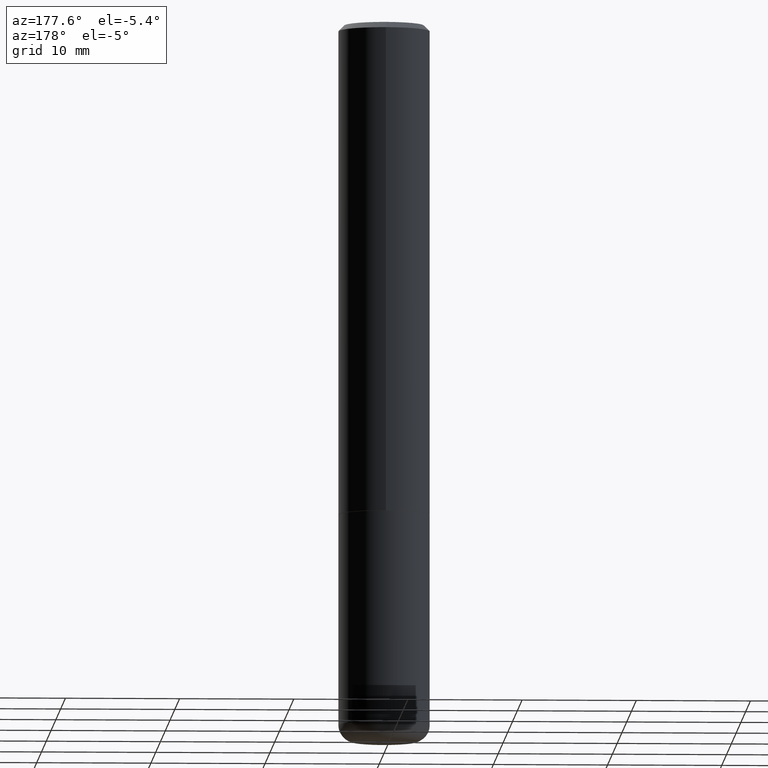
[diagram: clean part render]
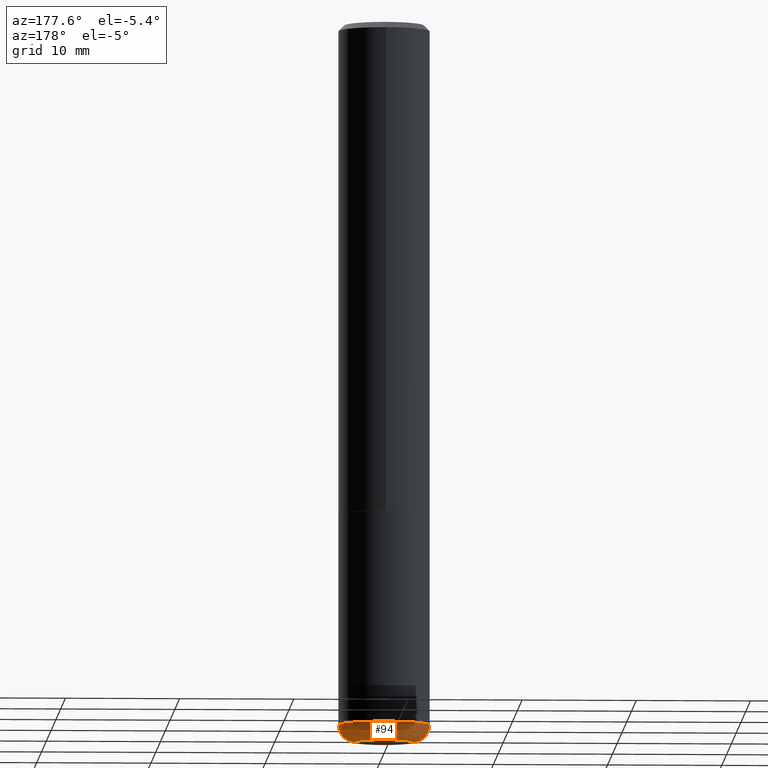
[diagram: same view with one face highlighted and labeled with its STEP entity id]
A machine part, auxiliary view. The second image highlights one B-rep face of the part: STEP entity #94.
In plain terms, the highlighted toroidal blend (fillet) surface has major radius 2.4994 mm and minor (blend) radius 1.5011 mm.
Its self-contained STEP definition (entity closure, byte-faithful):
#21 = DIRECTION ( 'NONE',  ( -2.445468806185136597E-29, 3.491481338843145583E-15, 1.000000000000000000 ) ) ;
#37 = CARTESIAN_POINT ( 'NONE',  ( 6.065496279980994755E-29, -8.659921164732655335E-15, -2.480300000000000171 ) ) ;
#39 = ORIENTED_EDGE ( 'NONE', *, *, #386, .T. ) ;
#43 = VERTEX_POINT ( 'NONE', #157 ) ;
#45 = CARTESIAN_POINT ( 'NONE',  ( -0.1574999999999999456, -7.334469808784867333E-15, -2.421200000000000241 ) ) ;
#48 = CARTESIAN_POINT ( 'NONE',  ( 0.09840000000000000135, -9.347044692216982806E-15, -2.480300000000000171 ) ) ;
#72 = AXIS2_PLACEMENT_3D ( 'NONE', #98, #344, #252 ) ;
#94 = ADVANCED_FACE ( 'NONE', ( #381 ), #202, .T. ) ;
#95 = DIRECTION ( 'NONE',  ( 7.105427357601001859E-15, 1.000000000000000000, -3.491481338843145583E-15 ) ) ;
#96 = AXIS2_PLACEMENT_3D ( 'NONE', #126, #21, #284 ) ;
#98 = CARTESIAN_POINT ( 'NONE',  ( 5.920969073535453422E-29, -8.453574617607024936E-15, -2.421200000000000241 ) ) ;
#107 = VERTEX_POINT ( 'NONE', #45 ) ;
#120 = EDGE_LOOP ( 'NONE', ( #145, #39, #170, #295 ) ) ;
#126 = CARTESIAN_POINT ( 'NONE',  ( 5.920969073535453422E-29, -8.453574617607024936E-15, -2.421200000000000241 ) ) ;
#145 = ORIENTED_EDGE ( 'NONE', *, *, #287, .T. ) ;
#156 = DIRECTION ( 'NONE',  ( 1.000000000000000000, -6.982962677686266711E-15, 0.000000000000000000 ) ) ;
#157 = CARTESIAN_POINT ( 'NONE',  ( -0.09840000000000000135, -7.647608460764791890E-15, -2.480300000000000171 ) ) ;
#170 = ORIENTED_EDGE ( 'NONE', *, *, #356, .F. ) ;
#202 = TOROIDAL_SURFACE ( 'NONE', #96, 0.09840000000000000135, 0.05909999999999995812 ) ;
#205 = EDGE_CURVE ( 'NONE', #208, #239, #282, .T. ) ;
#208 = VERTEX_POINT ( 'NONE', #48 ) ;
#210 = DIRECTION ( 'NONE',  ( -2.445468806185136597E-29, 3.491481338843145583E-15, 1.000000000000000000 ) ) ;
#222 = CARTESIAN_POINT ( 'NONE',  ( -0.09840000000000000135, -7.754400565619087626E-15, -2.421200000000000241 ) ) ;
#229 = AXIS2_PLACEMENT_3D ( 'NONE', #37, #210, #375 ) ;
#239 = VERTEX_POINT ( 'NONE', #321 ) ;
#252 = DIRECTION ( 'NONE',  ( 1.000000000000000000, -6.982962677686268288E-15, 0.000000000000000000 ) ) ;
#256 = DIRECTION ( 'NONE',  ( -1.000000000000000000, 7.105427357600997914E-15, 0.000000000000000000 ) ) ;
#260 = AXIS2_PLACEMENT_3D ( 'NONE', #305, #297, #156 ) ;
#282 = CIRCLE ( 'NONE', #260, 0.05909999999999995812 ) ;
#284 = DIRECTION ( 'NONE',  ( 1.000000000000000000, -6.982962677686269866E-15, 4.883557194083114022E-29 ) ) ;
#287 = EDGE_CURVE ( 'NONE', #208, #43, #418, .T. ) ;
#295 = ORIENTED_EDGE ( 'NONE', *, *, #205, .F. ) ;
#297 = DIRECTION ( 'NONE',  ( -6.982962677686266711E-15, -1.000000000000000000, 3.491481338843145583E-15 ) ) ;
#305 = CARTESIAN_POINT ( 'NONE',  ( 0.09840000000000000135, -9.140698145091353984E-15, -2.421200000000000241 ) ) ;
#321 = CARTESIAN_POINT ( 'NONE',  ( 0.1574999999999999456, -9.553391239342613205E-15, -2.421200000000000241 ) ) ;
#344 = DIRECTION ( 'NONE',  ( -2.445468806185136597E-29, 3.491481338843145583E-15, 1.000000000000000000 ) ) ;
#356 = EDGE_CURVE ( 'NONE', #239, #107, #360, .T. ) ;
#360 = CIRCLE ( 'NONE', #72, 0.1575000000000000011 ) ;
#375 = DIRECTION ( 'NONE',  ( 1.000000000000000000, -6.982962677686261977E-15, 0.000000000000000000 ) ) ;
#381 = FACE_OUTER_BOUND ( 'NONE', #120, .T. ) ;
#386 = EDGE_CURVE ( 'NONE', #43, #107, #391, .T. ) ;
#391 = CIRCLE ( 'NONE', #416, 0.05909999999999995812 ) ;
#416 = AXIS2_PLACEMENT_3D ( 'NONE', #222, #95, #256 ) ;
#418 = CIRCLE ( 'NONE', #229, 0.09840000000000000135 ) ;